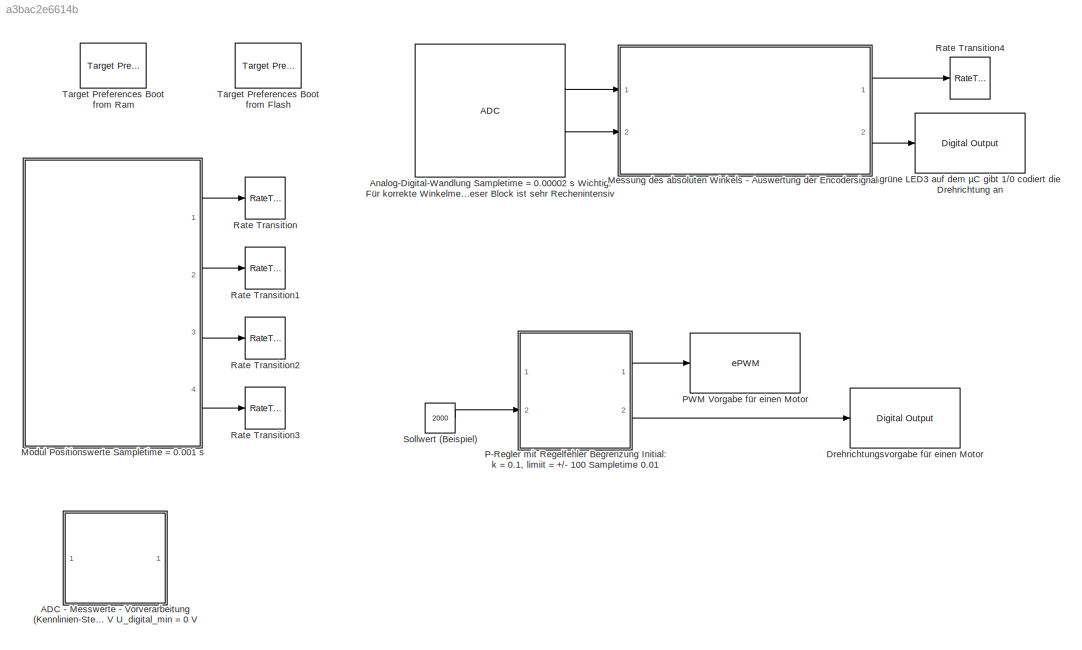
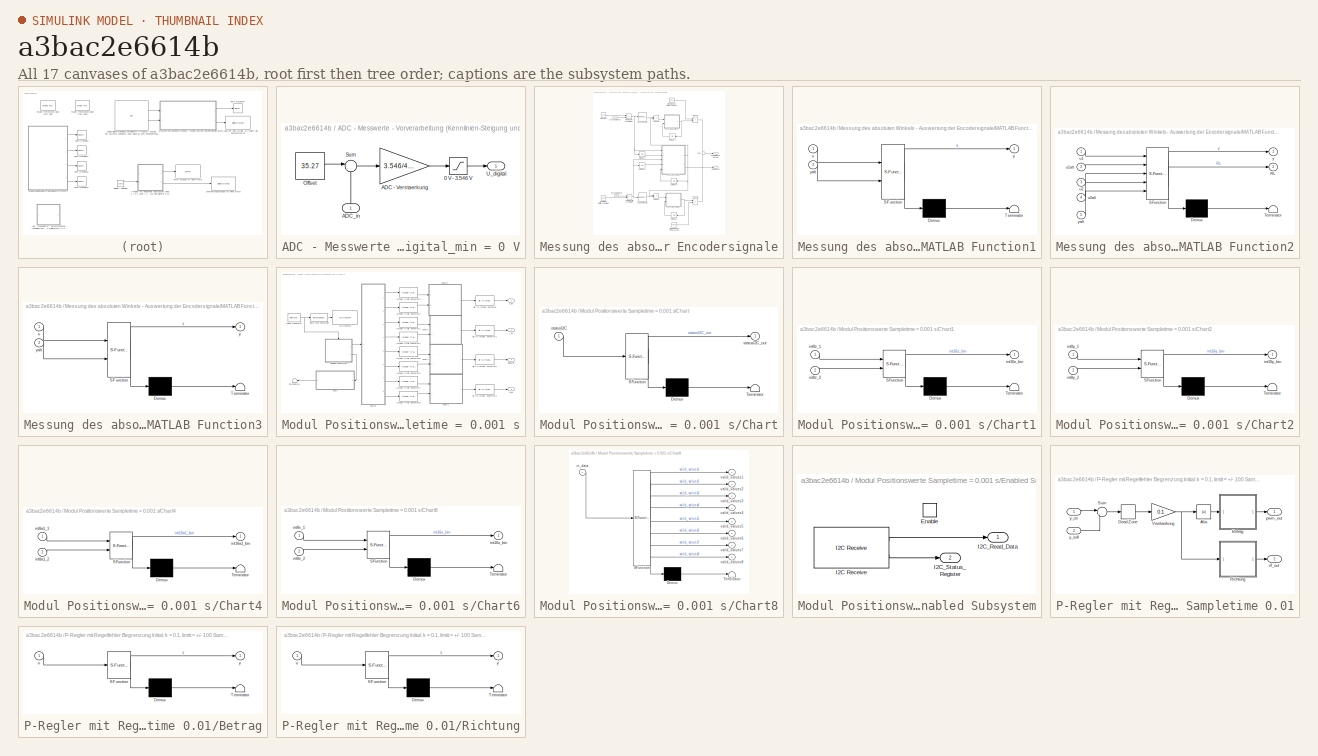
[diagram: thumbnail index - all 17 canvases of the model, root first then tree order]
MODEL slx_a3bac2e6614b
KIND model
BLOCK [SubSystem] ADC - Messwerte - Vorverarbeitung (Kennlinien-Steigung und Offset-Kompensation) U_digital = (ADC_in - Offset) * 3.546 V // 4096 mit U_digital_max = 3.546 V U_digital_min = 0 V
  FunctionWithSeparateData = off
  MaskHideContents = off
  MinAlgLoopOccurrences = off
  Opaque = off
  Ports = [1, 1]
  PropExecContextOutsideSubsystem = off
  RTWSystemCode = Auto
  RequestExecContextInheritance = off
BLOCK [Saturate] ADC - Messwerte - Vorverarbeitung (Kennlinien-Steigung und Offset-Kompensation) U_digital = (ADC_in - Offset) * 3.546 V // 4096 mit U_digital_max = 3.546 V U_digital_min = 0 V/0 V - 3.546 V
  InputPortMap = u0
  LowerLimit = 0
  Ports = [1, 1]
  UpperLimit = 3.546
BLOCK [Gain] ADC - Messwerte - Vorverarbeitung (Kennlinien-Steigung und Offset-Kompensation) U_digital = (ADC_in - Offset) * 3.546 V // 4096 mit U_digital_max = 3.546 V U_digital_min = 0 V/ADC - Verstaerkung
  Gain = 3.546/4096
  OutDataTypeStr = Inherit: Inherit via internal rule
  ParamDataTypeStr = Inherit: Inherit via internal rule
  SaturateOnIntegerOverflow = off
BLOCK [Inport] ADC - Messwerte - Vorverarbeitung (Kennlinien-Steigung und Offset-Kompensation) U_digital = (ADC_in - Offset) * 3.546 V // 4096 mit U_digital_max = 3.546 V U_digital_min = 0 V/ADC_in
  IconDisplay = Port number
BLOCK [Constant] ADC - Messwerte - Vorverarbeitung (Kennlinien-Steigung und Offset-Kompensation) U_digital = (ADC_in - Offset) * 3.546 V // 4096 mit U_digital_max = 3.546 V U_digital_min = 0 V/Offset
  Value = 35.27
BLOCK [Sum] ADC - Messwerte - Vorverarbeitung (Kennlinien-Steigung und Offset-Kompensation) U_digital = (ADC_in - Offset) * 3.546 V // 4096 mit U_digital_max = 3.546 V U_digital_min = 0 V/Sum
  IconShape = round
  InputSameDT = off
  Inputs = |-+
  OutDataTypeStr = Inherit: Inherit via internal rule
  Ports = [2, 1]
  SaturateOnIntegerOverflow = off
BLOCK [Outport] ADC - Messwerte - Vorverarbeitung (Kennlinien-Steigung und Offset-Kompensation) U_digital = (ADC_in - Offset) * 3.546 V // 4096 mit U_digital_max = 3.546 V U_digital_min = 0 V/U_digital
  IconDisplay = Port number
BLOCK [Reference] Analog-Digital-Wandlung Sampletime = 0.00002 s Wichtig! Für korrekte Winkelmessung nicht die Sampletime vergrößern Weitere Ports können hinzugefügt werden (Farbsensor, Sharp-Sensoren) Wichtig! Dieser Block ist sehr Rechenintensiv  REF=c280xlib/ADC
  Ports = [0, 2]
  SourceBlock = c280xlib/ADC
  SourceType = C280x/C2833x ADC
  Ts = 0.00002
  UserDataPersistent = on
  c28xmultiPort = on
  chdma = 1
  conv0 = ADCINA0
  conv1 = ADCINA1
  conv10 = ADCINB2
  conv11 = ADCINB3
  conv12 = ADCINB4
  conv13 = ADCINB5
  conv14 = ADCINB6
  conv15 = ADCINB7
  conv2 = ADCINA2
  conv3 = ADCINA3
  conv4 = ADCINA4
  conv5 = ADCINA5
  conv6 = ADCINA6
  conv7 = ADCINA7
  conv8 = ADCINB0
  conv9 = ADCINB1
  convA0 = ADCINA0
  convA1 = ADCINA1
  convA2 = ADCINA5
  convA3 = ADCINA3
  convA4 = ADCINA5
  convA5 = ADCINA5
  convA6 = ADCINA6
  convA7 = ADCINA7
  convAB0 = ADCINA0 and ADCINB0
  convAB1 = ADCINA1 and ADCINB1
  convAB2 = ADCINA2 and ADCINB2
  convAB3 = ADCINA3 and ADCINB3
  convAB4 = ADCINA4 and ADCINB4
  convAB5 = ADCINA5 and ADCINB5
  convAB6 = ADCINA6 and ADCINB6
  convAB7 = ADCINA7 and ADCINB7
  convB0 = ADCINB0
  convB1 = ADCINB1
  convB2 = ADCINB2
  convB3 = ADCINB3
  convB4 = ADCINB4
  convB5 = ADCINB5
  convB6 = ADCINB6
  convB7 = ADCINB7
  dType = double
  endma = off
  numConversionsDouble = 1
  numConversionsSingle = 2
  postInterrupt = off
  sourceSOC = Software
  sourceSOC1 = Software
  sourceSOC2 = ePWMxB
  useMode = Sequential
  useModule = A
  xint2_ADCSOC = 31
BLOCK [Reference] Drehrichtungsvorgabe für einen Motor  REF=c2833xlib/Digital Output
  GPIO_BIT0_Toggle = off
  GPIO_BIT1_Toggle = off
  GPIO_BIT2_Toggle = off
  GPIO_BIT3_Toggle = off
  GPIO_BIT4_Toggle = off
  GPIO_BIT5_Toggle = off
  GPIO_BIT6_Toggle = off
  GPIO_BIT7_Toggle = off
  GPIO_Bit0 = off
  GPIO_Bit1 = off
  GPIO_Bit2 = off
  GPIO_Bit3 = off
  GPIO_Bit4 = off
  GPIO_Bit5 = on
  GPIO_Bit6 = off
  GPIO_Bit7 = off
  GPIO_Number = GPIO16~GPIO23
  Ports = [1]
  SourceBlock = c2833xlib/Digital Output
  SourceType = C2833x GPIO Digital Output
  UserDataPersistent = on
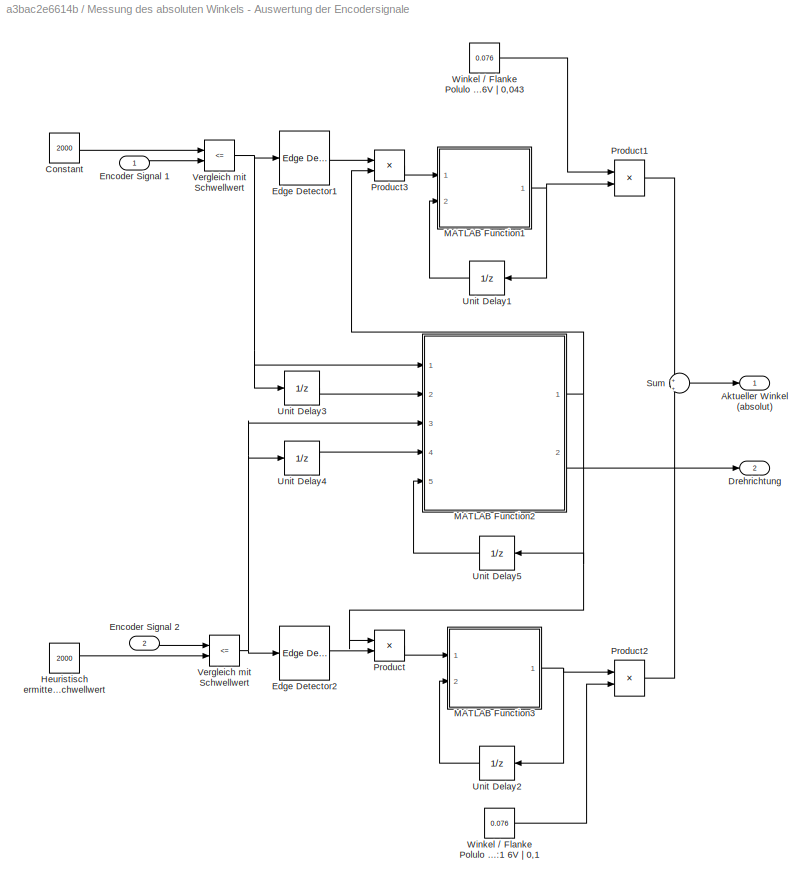
BLOCK [SubSystem] Messung des absoluten Winkels - Auswertung der Encodersignale
  FunctionWithSeparateData = off
  MaskHideContents = off
  MinAlgLoopOccurrences = off
  Opaque = off
  Ports = [2, 2]
  PropExecContextOutsideSubsystem = off
  RTWSystemCode = Auto
  RequestExecContextInheritance = off
BLOCK [Outport] Messung des absoluten Winkels - Auswertung der Encodersignale/Aktueller Winkel (absolut)
  IconDisplay = Port number
BLOCK [Constant] Messung des absoluten Winkels - Auswertung der Encodersignale/Constant
  Value = 2000
BLOCK [Outport] Messung des absoluten Winkels - Auswertung der Encodersignale/Drehrichtung
  IconDisplay = Port number
  Port = 2
BLOCK [Reference] Messung des absoluten Winkels - Auswertung der Encodersignale/Edge Detector1  REF=powerlib_extras/Control 
Blocks/Edge Detector
  Ports = [1, 1]
  SourceBlock = powerlib_extras/Control \nBlocks/Edge Detector
  SourceType = Edge Detector
  ic = 0
  model = Either
BLOCK [Reference] Messung des absoluten Winkels - Auswertung der Encodersignale/Edge Detector2  REF=powerlib_extras/Control 
Blocks/Edge Detector
  Ports = [1, 1]
  SourceBlock = powerlib_extras/Control \nBlocks/Edge Detector
  SourceType = Edge Detector
  ic = 0
  model = Either
BLOCK [Inport] Messung des absoluten Winkels - Auswertung der Encodersignale/Encoder Signal 1
  IconDisplay = Port number
BLOCK [Inport] Messung des absoluten Winkels - Auswertung der Encodersignale/Encoder Signal 2
  IconDisplay = Port number
  Port = 2
BLOCK [Constant] Messung des absoluten Winkels - Auswertung der Encodersignale/Heuristisch ermittelter Schwellwert
  Value = 2000
BLOCK [SubSystem] Messung des absoluten Winkels - Auswertung der Encodersignale/MATLAB Function1
  ErrorFcn = Stateflow.Translate.translate
  FunctionWithSeparateData = off
  MaskHideContents = off
  MinAlgLoopOccurrences = off
  Opaque = off
  PermitHierarchicalResolution = ExplicitOnly
  Ports = [2, 1]
  PropExecContextOutsideSubsystem = off
  RTWSystemCode = Auto
  RequestExecContextInheritance = off
  SFBlockType = MATLAB Function
  TreatAsAtomicUnit = on
BLOCK [Demux] Messung des absoluten Winkels - Auswertung der Encodersignale/MATLAB Function1/ Demux 
  Outputs = 1
  Ports = [1, 1]
BLOCK [S-Function] Messung des absoluten Winkels - Auswertung der Encodersignale/MATLAB Function1/ SFunction 
  EnableBusSupport = on
  FunctionName = sf_sfun
  PortCounts = [2 2]
  Ports = [2, 2]
  Tag = Stateflow S-Function SoftwareModuleMatlab2012b32bit64bit 8
BLOCK [Terminator] Messung des absoluten Winkels - Auswertung der Encodersignale/MATLAB Function1/ Terminator 
BLOCK [Inport] Messung des absoluten Winkels - Auswertung der Encodersignale/MATLAB Function1/u
  IconDisplay = Port number
BLOCK [Outport] Messung des absoluten Winkels - Auswertung der Encodersignale/MATLAB Function1/y
  IconDisplay = Port number
BLOCK [Inport] Messung des absoluten Winkels - Auswertung der Encodersignale/MATLAB Function1/yalt
  IconDisplay = Port number
  Port = 2
BLOCK [SubSystem] Messung des absoluten Winkels - Auswertung der Encodersignale/MATLAB Function2
  ErrorFcn = Stateflow.Translate.translate
  FunctionWithSeparateData = off
  MaskHideContents = off
  MinAlgLoopOccurrences = off
  Opaque = off
  PermitHierarchicalResolution = ExplicitOnly
  Ports = [5, 2]
  PropExecContextOutsideSubsystem = off
  RTWSystemCode = Auto
  RequestExecContextInheritance = off
  SFBlockType = MATLAB Function
  TreatAsAtomicUnit = on
BLOCK [Demux] Messung des absoluten Winkels - Auswertung der Encodersignale/MATLAB Function2/ Demux 
  Outputs = 1
  Ports = [1, 1]
BLOCK [S-Function] Messung des absoluten Winkels - Auswertung der Encodersignale/MATLAB Function2/ SFunction 
  EnableBusSupport = on
  FunctionName = sf_sfun
  PortCounts = [5 3]
  Ports = [5, 3]
  Tag = Stateflow S-Function SoftwareModuleMatlab2012b32bit64bit 15
BLOCK [Terminator] Messung des absoluten Winkels - Auswertung der Encodersignale/MATLAB Function2/ Terminator 
BLOCK [Outport] Messung des absoluten Winkels - Auswertung der Encodersignale/MATLAB Function2/RL
  IconDisplay = Port number
  Port = 2
BLOCK [Inport] Messung des absoluten Winkels - Auswertung der Encodersignale/MATLAB Function2/u1
  IconDisplay = Port number
BLOCK [Inport] Messung des absoluten Winkels - Auswertung der Encodersignale/MATLAB Function2/u1alt
  IconDisplay = Port number
  Port = 2
BLOCK [Inport] Messung des absoluten Winkels - Auswertung der Encodersignale/MATLAB Function2/u2
  IconDisplay = Port number
  Port = 3
BLOCK [Inport] Messung des absoluten Winkels - Auswertung der Encodersignale/MATLAB Function2/u2alt
  IconDisplay = Port number
  Port = 4
BLOCK [Outport] Messung des absoluten Winkels - Auswertung der Encodersignale/MATLAB Function2/y
  IconDisplay = Port number
BLOCK [Inport] Messung des absoluten Winkels - Auswertung der Encodersignale/MATLAB Function2/yalt
  IconDisplay = Port number
  Port = 5
BLOCK [SubSystem] Messung des absoluten Winkels - Auswertung der Encodersignale/MATLAB Function3
  ErrorFcn = Stateflow.Translate.translate
  FunctionWithSeparateData = off
  MaskHideContents = off
  MinAlgLoopOccurrences = off
  Opaque = off
  PermitHierarchicalResolution = ExplicitOnly
  Ports = [2, 1]
  PropExecContextOutsideSubsystem = off
  RTWSystemCode = Auto
  RequestExecContextInheritance = off
  SFBlockType = MATLAB Function
  TreatAsAtomicUnit = on
BLOCK [Demux] Messung des absoluten Winkels - Auswertung der Encodersignale/MATLAB Function3/ Demux 
  Outputs = 1
  Ports = [1, 1]
BLOCK [S-Function] Messung des absoluten Winkels - Auswertung der Encodersignale/MATLAB Function3/ SFunction 
  EnableBusSupport = on
  FunctionName = sf_sfun
  PortCounts = [2 2]
  Ports = [2, 2]
  Tag = Stateflow S-Function SoftwareModuleMatlab2012b32bit64bit 20
BLOCK [Terminator] Messung des absoluten Winkels - Auswertung der Encodersignale/MATLAB Function3/ Terminator 
BLOCK [Inport] Messung des absoluten Winkels - Auswertung der Encodersignale/MATLAB Function3/u
  IconDisplay = Port number
BLOCK [Outport] Messung des absoluten Winkels - Auswertung der Encodersignale/MATLAB Function3/y
  IconDisplay = Port number
BLOCK [Inport] Messung des absoluten Winkels - Auswertung der Encodersignale/MATLAB Function3/yalt
  IconDisplay = Port number
  Port = 2
BLOCK [Product] Messung des absoluten Winkels - Auswertung der Encodersignale/Product
  InputSameDT = off
  OutDataTypeStr = Inherit: Inherit via internal rule
  Ports = [2, 1]
  SaturateOnIntegerOverflow = off
BLOCK [Product] Messung des absoluten Winkels - Auswertung der Encodersignale/Product1
  InputSameDT = off
  OutDataTypeStr = Inherit: Inherit via internal rule
  Ports = [2, 1]
  SaturateOnIntegerOverflow = off
BLOCK [Product] Messung des absoluten Winkels - Auswertung der Encodersignale/Product2
  InputSameDT = off
  OutDataTypeStr = Inherit: Inherit via internal rule
  Ports = [2, 1]
  SaturateOnIntegerOverflow = off
BLOCK [Product] Messung des absoluten Winkels - Auswertung der Encodersignale/Product3
  InputSameDT = off
  OutDataTypeStr = Inherit: Inherit via internal rule
  Ports = [2, 1]
  SaturateOnIntegerOverflow = off
BLOCK [Sum] Messung des absoluten Winkels - Auswertung der Encodersignale/Sum
  IconShape = round
  InputSameDT = off
  Inputs = +|+
  OutDataTypeStr = Inherit: Inherit via internal rule
  Ports = [2, 1]
  SaturateOnIntegerOverflow = off
BLOCK [UnitDelay] Messung des absoluten Winkels - Auswertung der Encodersignale/Unit Delay1
  InputProcessing = Elements as channels (sample based)
  SampleTime = -1
BLOCK [UnitDelay] Messung des absoluten Winkels - Auswertung der Encodersignale/Unit Delay2
  InputProcessing = Elements as channels (sample based)
  SampleTime = -1
BLOCK [UnitDelay] Messung des absoluten Winkels - Auswertung der Encodersignale/Unit Delay3
  InputProcessing = Elements as channels (sample based)
  SampleTime = -1
BLOCK [UnitDelay] Messung des absoluten Winkels - Auswertung der Encodersignale/Unit Delay4
  InputProcessing = Elements as channels (sample based)
  SampleTime = -1
BLOCK [UnitDelay] Messung des absoluten Winkels - Auswertung der Encodersignale/Unit Delay5
  InputProcessing = Elements as channels (sample based)
  SampleTime = -1
BLOCK [RelationalOperator] Messung des absoluten Winkels - Auswertung der Encodersignale/Vergleich mit Schwellwert
  InputSameDT = off
  Operator = <=
  OutDataTypeStr = boolean
  Ports = [2, 1]
BLOCK [Constant] Messung des absoluten Winkels - Auswertung der Encodersignale/Winkel // Flanke Polulo 34:1 6V | 0,22 Polulo 74:1 6V | 0,1 Polulo 98:1 6V | 0,076 Polulo 171:1 6V | 0,043
  Value = 0.076
BLOCK [Constant] Messung des absoluten Winkels - Auswertung der Encodersignale/Winkel // Flanke Polulo 34:1 6V | 0,22 Polulo 74:1 6V | 0,1 Polulo 98:1 6V | 0,076 Polulo 171:1 6V | 0,1
  Value = 0.076
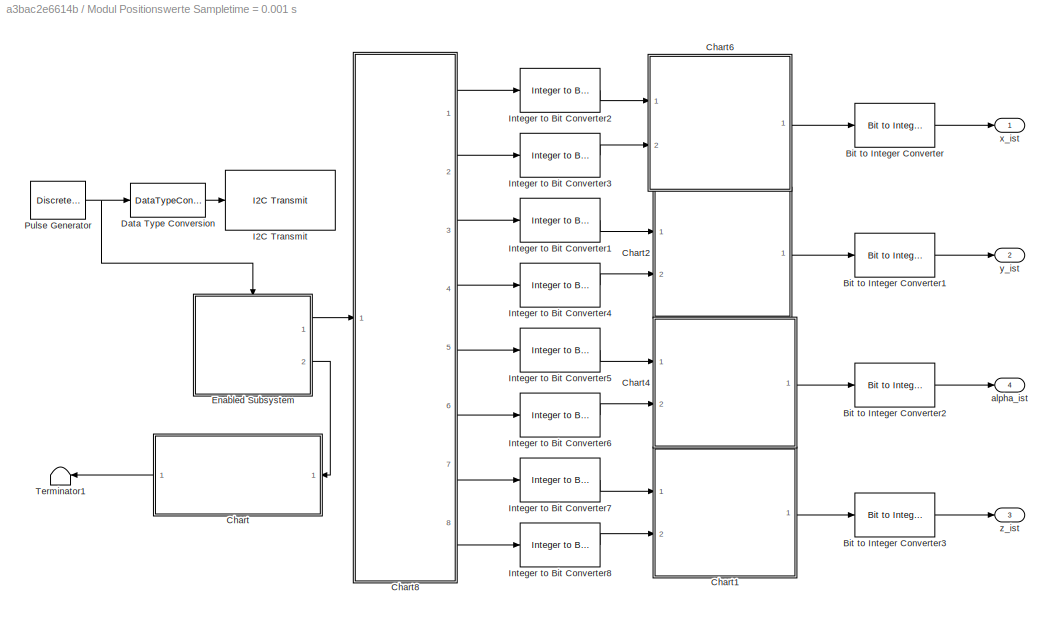
BLOCK [SubSystem] Modul Positionswerte Sampletime = 0.001 s
  FunctionWithSeparateData = off
  MaskHideContents = off
  MinAlgLoopOccurrences = off
  Opaque = off
  Ports = [0, 4]
  PropExecContextOutsideSubsystem = off
  RTWSystemCode = Auto
  RequestExecContextInheritance = off
BLOCK [Reference] Modul Positionswerte Sampletime = 0.001 s/Bit to Integer Converter  REF=commutil2/Bit to Integer
Converter
  Ports = [1, 1]
  SourceBlock = commutil2/Bit to Integer\nConverter
  SourceType = Bit to Integer Converter
  bitOrder = MSB first
  nbits = 16
  outDtype = Inherit via internal rule
  outDtypeSigned = Inherit via internal rule
  signedOutputValues = Signed
BLOCK [Reference] Modul Positionswerte Sampletime = 0.001 s/Bit to Integer Converter1  REF=commutil2/Bit to Integer
Converter
  Ports = [1, 1]
  SourceBlock = commutil2/Bit to Integer\nConverter
  SourceType = Bit to Integer Converter
  bitOrder = MSB first
  nbits = 16
  outDtype = Inherit via internal rule
  outDtypeSigned = Inherit via internal rule
  signedOutputValues = Signed
BLOCK [Reference] Modul Positionswerte Sampletime = 0.001 s/Bit to Integer Converter2  REF=commutil2/Bit to Integer
Converter
  Ports = [1, 1]
  SourceBlock = commutil2/Bit to Integer\nConverter
  SourceType = Bit to Integer Converter
  bitOrder = MSB first
  nbits = 16
  outDtype = Inherit via internal rule
  outDtypeSigned = Inherit via internal rule
  signedOutputValues = Signed
BLOCK [Reference] Modul Positionswerte Sampletime = 0.001 s/Bit to Integer Converter3  REF=commutil2/Bit to Integer
Converter
  Ports = [1, 1]
  SourceBlock = commutil2/Bit to Integer\nConverter
  SourceType = Bit to Integer Converter
  bitOrder = MSB first
  nbits = 16
  outDtype = Inherit via internal rule
  outDtypeSigned = Inherit via internal rule
  signedOutputValues = Signed
BLOCK [SubSystem] Modul Positionswerte Sampletime = 0.001 s/Chart
  ErrorFcn = Stateflow.Translate.translate
  FunctionWithSeparateData = off
  MaskHideContents = off
  MinAlgLoopOccurrences = off
  Opaque = off
  PermitHierarchicalResolution = ExplicitOnly
  Ports = [1, 1]
  PropExecContextOutsideSubsystem = off
  RTWSystemCode = Auto
  RequestExecContextInheritance = off
  SFBlockType = Chart
  TreatAsAtomicUnit = on
BLOCK [Demux] Modul Positionswerte Sampletime = 0.001 s/Chart/ Demux 
  Outputs = 1
  Ports = [1, 1]
BLOCK [S-Function] Modul Positionswerte Sampletime = 0.001 s/Chart/ SFunction 
  EnableBusSupport = on
  FunctionName = sf_sfun
  PortCounts = [1 2]
  Ports = [1, 2]
  Tag = Stateflow S-Function SoftwareModuleMatlab2012b32bit64bit 21
BLOCK [Terminator] Modul Positionswerte Sampletime = 0.001 s/Chart/ Terminator 
BLOCK [Inport] Modul Positionswerte Sampletime = 0.001 s/Chart/statusI2C
  IconDisplay = Port number
BLOCK [Outport] Modul Positionswerte Sampletime = 0.001 s/Chart/statusI2C_out
  IconDisplay = Port number
BLOCK [SubSystem] Modul Positionswerte Sampletime = 0.001 s/Chart1
  ErrorFcn = Stateflow.Translate.translate
  FunctionWithSeparateData = off
  MaskHideContents = off
  MinAlgLoopOccurrences = off
  Opaque = off
  PermitHierarchicalResolution = ExplicitOnly
  Ports = [2, 1]
  PropExecContextOutsideSubsystem = off
  RTWSystemCode = Auto
  RequestExecContextInheritance = off
  SFBlockType = Chart
  TreatAsAtomicUnit = on
BLOCK [Demux] Modul Positionswerte Sampletime = 0.001 s/Chart1/ Demux 
  Outputs = 1
  Ports = [1, 1]
BLOCK [S-Function] Modul Positionswerte Sampletime = 0.001 s/Chart1/ SFunction 
  EnableBusSupport = off
  FunctionName = sf_sfun
  PortCounts = [2 2]
  Ports = [2, 2]
  Tag = Stateflow S-Function SoftwareModuleMatlab2012b32bit64bit 1
BLOCK [Terminator] Modul Positionswerte Sampletime = 0.001 s/Chart1/ Terminator 
BLOCK [Outport] Modul Positionswerte Sampletime = 0.001 s/Chart1/int16z_bin
  IconDisplay = Port number
BLOCK [Inport] Modul Positionswerte Sampletime = 0.001 s/Chart1/int8z_1
  IconDisplay = Port number
BLOCK [Inport] Modul Positionswerte Sampletime = 0.001 s/Chart1/int8z_2
  IconDisplay = Port number
  Port = 2
BLOCK [SubSystem] Modul Positionswerte Sampletime = 0.001 s/Chart2
  ErrorFcn = Stateflow.Translate.translate
  FunctionWithSeparateData = off
  MaskHideContents = off
  MinAlgLoopOccurrences = off
  Opaque = off
  PermitHierarchicalResolution = ExplicitOnly
  Ports = [2, 1]
  PropExecContextOutsideSubsystem = off
  RTWSystemCode = Auto
  RequestExecContextInheritance = off
  SFBlockType = Chart
  TreatAsAtomicUnit = on
BLOCK [Demux] Modul Positionswerte Sampletime = 0.001 s/Chart2/ Demux 
  Outputs = 1
  Ports = [1, 1]
BLOCK [S-Function] Modul Positionswerte Sampletime = 0.001 s/Chart2/ SFunction 
  EnableBusSupport = off
  FunctionName = sf_sfun
  PortCounts = [2 2]
  Ports = [2, 2]
  Tag = Stateflow S-Function SoftwareModuleMatlab2012b32bit64bit 3
BLOCK [Terminator] Modul Positionswerte Sampletime = 0.001 s/Chart2/ Terminator 
BLOCK [Outport] Modul Positionswerte Sampletime = 0.001 s/Chart2/int16y_bin
  IconDisplay = Port number
BLOCK [Inport] Modul Positionswerte Sampletime = 0.001 s/Chart2/int8y_1
  IconDisplay = Port number
BLOCK [Inport] Modul Positionswerte Sampletime = 0.001 s/Chart2/int8y_2
  IconDisplay = Port number
  Port = 2
BLOCK [SubSystem] Modul Positionswerte Sampletime = 0.001 s/Chart4
  ErrorFcn = Stateflow.Translate.translate
  FunctionWithSeparateData = off
  MaskHideContents = off
  MinAlgLoopOccurrences = off
  Opaque = off
  PermitHierarchicalResolution = ExplicitOnly
  Ports = [2, 1]
  PropExecContextOutsideSubsystem = off
  RTWSystemCode = Auto
  RequestExecContextInheritance = off
  SFBlockType = Chart
  TreatAsAtomicUnit = on
BLOCK [Demux] Modul Positionswerte Sampletime = 0.001 s/Chart4/ Demux 
  Outputs = 1
  Ports = [1, 1]
BLOCK [S-Function] Modul Positionswerte Sampletime = 0.001 s/Chart4/ SFunction 
  EnableBusSupport = off
  FunctionName = sf_sfun
  PortCounts = [2 2]
  Ports = [2, 2]
  Tag = Stateflow S-Function SoftwareModuleMatlab2012b32bit64bit 5
BLOCK [Terminator] Modul Positionswerte Sampletime = 0.001 s/Chart4/ Terminator 
BLOCK [Outport] Modul Positionswerte Sampletime = 0.001 s/Chart4/int16a1_bin
  IconDisplay = Port number
BLOCK [Inport] Modul Positionswerte Sampletime = 0.001 s/Chart4/int8a1_1
  IconDisplay = Port number
BLOCK [Inport] Modul Positionswerte Sampletime = 0.001 s/Chart4/int8a1_2
  IconDisplay = Port number
  Port = 2
BLOCK [SubSystem] Modul Positionswerte Sampletime = 0.001 s/Chart6
  ErrorFcn = Stateflow.Translate.translate
  FunctionWithSeparateData = off
  MaskHideContents = off
  MinAlgLoopOccurrences = off
  Opaque = off
  PermitHierarchicalResolution = ExplicitOnly
  Ports = [2, 1]
  PropExecContextOutsideSubsystem = off
  RTWSystemCode = Auto
  RequestExecContextInheritance = off
  SFBlockType = Chart
  TreatAsAtomicUnit = on
BLOCK [Demux] Modul Positionswerte Sampletime = 0.001 s/Chart6/ Demux 
  Outputs = 1
  Ports = [1, 1]
BLOCK [S-Function] Modul Positionswerte Sampletime = 0.001 s/Chart6/ SFunction 
  EnableBusSupport = off
  FunctionName = sf_sfun
  PortCounts = [2 2]
  Ports = [2, 2]
  Tag = Stateflow S-Function SoftwareModuleMatlab2012b32bit64bit 7
BLOCK [Terminator] Modul Positionswerte Sampletime = 0.001 s/Chart6/ Terminator 
BLOCK [Outport] Modul Positionswerte Sampletime = 0.001 s/Chart6/int16x_bin
  IconDisplay = Port number
BLOCK [Inport] Modul Positionswerte Sampletime = 0.001 s/Chart6/int8x_1
  IconDisplay = Port number
BLOCK [Inport] Modul Positionswerte Sampletime = 0.001 s/Chart6/int8x_2
  IconDisplay = Port number
  Port = 2
BLOCK [SubSystem] Modul Positionswerte Sampletime = 0.001 s/Chart8
  ErrorFcn = Stateflow.Translate.translate
  FunctionWithSeparateData = off
  MaskHideContents = off
  MinAlgLoopOccurrences = off
  Opaque = off
  PermitHierarchicalResolution = ExplicitOnly
  Ports = [1, 8]
  PropExecContextOutsideSubsystem = off
  RTWSystemCode = Auto
  RequestExecContextInheritance = off
  SFBlockType = Chart
  TreatAsAtomicUnit = on
BLOCK [Demux] Modul Positionswerte Sampletime = 0.001 s/Chart8/ Demux 
  Outputs = 1
  Ports = [1, 1]
BLOCK [S-Function] Modul Positionswerte Sampletime = 0.001 s/Chart8/ SFunction 
  EnableBusSupport = off
  FunctionName = sf_sfun
  PortCounts = [1 9]
  Ports = [1, 9]
  Tag = Stateflow S-Function SoftwareModuleMatlab2012b32bit64bit 9
BLOCK [Terminator] Modul Positionswerte Sampletime = 0.001 s/Chart8/ Terminator 
BLOCK [Inport] Modul Positionswerte Sampletime = 0.001 s/Chart8/in_data
  IconDisplay = Port number
BLOCK [Outport] Modul Positionswerte Sampletime = 0.001 s/Chart8/valid_values1
  IconDisplay = Port number
BLOCK [Outport] Modul Positionswerte Sampletime = 0.001 s/Chart8/valid_values2
  IconDisplay = Port number
  Port = 2
BLOCK [Outport] Modul Positionswerte Sampletime = 0.001 s/Chart8/valid_values3
  IconDisplay = Port number
  Port = 3
BLOCK [Outport] Modul Positionswerte Sampletime = 0.001 s/Chart8/valid_values4
  IconDisplay = Port number
  Port = 4
BLOCK [Outport] Modul Positionswerte Sampletime = 0.001 s/Chart8/valid_values5
  IconDisplay = Port number
  Port = 5
BLOCK [Outport] Modul Positionswerte Sampletime = 0.001 s/Chart8/valid_values6
  IconDisplay = Port number
  Port = 6
BLOCK [Outport] Modul Positionswerte Sampletime = 0.001 s/Chart8/valid_values7
  IconDisplay = Port number
  Port = 7
BLOCK [Outport] Modul Positionswerte Sampletime = 0.001 s/Chart8/valid_values8
  IconDisplay = Port number
  Port = 8
BLOCK [DataTypeConversion] Modul Positionswerte Sampletime = 0.001 s/Data Type Conversion
  OutDataTypeStr = uint8
  RndMeth = Floor
  SaturateOnIntegerOverflow = off
BLOCK [SubSystem] Modul Positionswerte Sampletime = 0.001 s/Enabled Subsystem
  FunctionWithSeparateData = off
  MaskHideContents = off
  MinAlgLoopOccurrences = off
  Opaque = off
  Ports = [0, 2, 1]
  PropExecContextOutsideSubsystem = off
  RTWSystemCode = Auto
  RequestExecContextInheritance = off
  TreatAsAtomicUnit = on
BLOCK [EnablePort] Modul Positionswerte Sampletime = 0.001 s/Enabled Subsystem/Enable
  Ports = []
  StatesWhenEnabling = reset
BLOCK [Reference] Modul Positionswerte Sampletime = 0.001 s/Enabled Subsystem/I2C Receive  REF=c280xlib/I2C Receive
  NACK = on
  Ports = [0, 2]
  SAR = 80
  STP = off
  STR = on
  SourceBlock = c280xlib/I2C Receive
  SourceType = C28x I2C Receive
  addrFormat = 7-Bit addressing
  bitCount = 8
  dataLength = 10
  dataType = uint8
  initValue = 0
  saSource = Specify via dialog
  sampleTime = 0.001
BLOCK [Outport] Modul Positionswerte Sampletime = 0.001 s/Enabled Subsystem/I2C_Read_Data
  IconDisplay = Port number
BLOCK [Outport] Modul Positionswerte Sampletime = 0.001 s/Enabled Subsystem/I2C_Status_Register
  IconDisplay = Port number
  Port = 2
BLOCK [Reference] Modul Positionswerte Sampletime = 0.001 s/I2C Transmit  REF=c280xlib/I2C Transmit
  Ports = [1]
  RM = off
  SAR = 80
  STP = off
  STR = off
  SourceBlock = c280xlib/I2C Transmit
  SourceType = C28x I2C Transmit
  addrFormat = 7-Bit addressing
  bitCount = 8
  saSource = Specify via dialog
BLOCK [Reference] Modul Positionswerte Sampletime = 0.001 s/Integer to Bit Converter1  REF=commutil2/Integer to Bit
Converter
  Ports = [1, 1]
  SourceBlock = commutil2/Integer to Bit\nConverter
  SourceType = Integer to Bit Converter
  bitOrder = MSB first
  nbits = 8
  outDtype = uint8
  signedInputValues = Unsigned
BLOCK [Reference] Modul Positionswerte Sampletime = 0.001 s/Integer to Bit Converter2  REF=commutil2/Integer to Bit
Converter
  Ports = [1, 1]
  SourceBlock = commutil2/Integer to Bit\nConverter
  SourceType = Integer to Bit Converter
  bitOrder = MSB first
  nbits = 8
  outDtype = uint8
  signedInputValues = Unsigned
BLOCK [Reference] Modul Positionswerte Sampletime = 0.001 s/Integer to Bit Converter3  REF=commutil2/Integer to Bit
Converter
  Ports = [1, 1]
  SourceBlock = commutil2/Integer to Bit\nConverter
  SourceType = Integer to Bit Converter
  bitOrder = MSB first
  nbits = 8
  outDtype = uint8
  signedInputValues = Unsigned
BLOCK [Reference] Modul Positionswerte Sampletime = 0.001 s/Integer to Bit Converter4  REF=commutil2/Integer to Bit
Converter
  Ports = [1, 1]
  SourceBlock = commutil2/Integer to Bit\nConverter
  SourceType = Integer to Bit Converter
  bitOrder = MSB first
  nbits = 8
  outDtype = uint8
  signedInputValues = Unsigned
BLOCK [Reference] Modul Positionswerte Sampletime = 0.001 s/Integer to Bit Converter5  REF=commutil2/Integer to Bit
Converter
  Ports = [1, 1]
  SourceBlock = commutil2/Integer to Bit\nConverter
  SourceType = Integer to Bit Converter
  bitOrder = MSB first
  nbits = 8
  outDtype = uint8
  signedInputValues = Unsigned
BLOCK [Reference] Modul Positionswerte Sampletime = 0.001 s/Integer to Bit Converter6  REF=commutil2/Integer to Bit
Converter
  Ports = [1, 1]
  SourceBlock = commutil2/Integer to Bit\nConverter
  SourceType = Integer to Bit Converter
  bitOrder = MSB first
  nbits = 8
  outDtype = uint8
  signedInputValues = Unsigned
BLOCK [Reference] Modul Positionswerte Sampletime = 0.001 s/Integer to Bit Converter7  REF=commutil2/Integer to Bit
Converter
  Ports = [1, 1]
  SourceBlock = commutil2/Integer to Bit\nConverter
  SourceType = Integer to Bit Converter
  bitOrder = MSB first
  nbits = 8
  outDtype = uint8
  signedInputValues = Unsigned
BLOCK [Reference] Modul Positionswerte Sampletime = 0.001 s/Integer to Bit Converter8  REF=commutil2/Integer to Bit
Converter
  Ports = [1, 1]
  SourceBlock = commutil2/Integer to Bit\nConverter
  SourceType = Integer to Bit Converter
  bitOrder = MSB first
  nbits = 8
  outDtype = uint8
  signedInputValues = Unsigned
BLOCK [DiscretePulseGenerator] Modul Positionswerte Sampletime = 0.001 s/Pulse Generator
  Period = 250
  Ports = [0, 1]
  PulseWidth = 249
  SampleTime = 0.001
BLOCK [Terminator] Modul Positionswerte Sampletime = 0.001 s/Terminator1
BLOCK [Outport] Modul Positionswerte Sampletime = 0.001 s/alpha_ist
  IconDisplay = Port number
  Port = 4
BLOCK [Outport] Modul Positionswerte Sampletime = 0.001 s/x_ist
  IconDisplay = Port number
BLOCK [Outport] Modul Positionswerte Sampletime = 0.001 s/y_ist
  IconDisplay = Port number
  Port = 2
BLOCK [Outport] Modul Positionswerte Sampletime = 0.001 s/z_ist
  IconDisplay = Port number
  Port = 3
BLOCK [SubSystem] P-Regler mit Regelfehler Begrenzung Initial: k = 0.1, limiit = +//- 100 Sampletime 0.01
  FunctionWithSeparateData = off
  MaskHideContents = off
  MinAlgLoopOccurrences = off
  Opaque = off
  Ports = [2, 2]
  PropExecContextOutsideSubsystem = off
  RTWSystemCode = Auto
  RequestExecContextInheritance = off
BLOCK [Abs] P-Regler mit Regelfehler Begrenzung Initial: k = 0.1, limiit = +//- 100 Sampletime 0.01/Abs
  SampleTime = 0.01
  SaturateOnIntegerOverflow = off
BLOCK [SubSystem] P-Regler mit Regelfehler Begrenzung Initial: k = 0.1, limiit = +//- 100 Sampletime 0.01/Betrag
  ErrorFcn = Stateflow.Translate.translate
  FunctionWithSeparateData = off
  MaskHideContents = off
  MinAlgLoopOccurrences = off
  Opaque = off
  PermitHierarchicalResolution = ExplicitOnly
  Ports = [1, 1]
  PropExecContextOutsideSubsystem = off
  RTWSystemCode = Auto
  RequestExecContextInheritance = off
  SFBlockType = MATLAB Function
  SystemSampleTime = 0.01
  TreatAsAtomicUnit = on
BLOCK [Demux] P-Regler mit Regelfehler Begrenzung Initial: k = 0.1, limiit = +//- 100 Sampletime 0.01/Betrag/ Demux 
  Outputs = 1
  Ports = [1, 1]
BLOCK [S-Function] P-Regler mit Regelfehler Begrenzung Initial: k = 0.1, limiit = +//- 100 Sampletime 0.01/Betrag/ SFunction 
  EnableBusSupport = off
  FunctionName = sf_sfun
  PortCounts = [1 2]
  Ports = [1, 2]
  Tag = Stateflow S-Function SoftwareModuleMatlab2012b32bit64bit 4
BLOCK [Terminator] P-Regler mit Regelfehler Begrenzung Initial: k = 0.1, limiit = +//- 100 Sampletime 0.01/Betrag/ Terminator 
BLOCK [Inport] P-Regler mit Regelfehler Begrenzung Initial: k = 0.1, limiit = +//- 100 Sampletime 0.01/Betrag/u
  IconDisplay = Port number
BLOCK [Outport] P-Regler mit Regelfehler Begrenzung Initial: k = 0.1, limiit = +//- 100 Sampletime 0.01/Betrag/y
  IconDisplay = Port number
BLOCK [DeadZone] P-Regler mit Regelfehler Begrenzung Initial: k = 0.1, limiit = +//- 100 Sampletime 0.01/Dead Zone
  LowerValue = -100
  SampleTime = 0.01
  UpperValue = 100
BLOCK [SubSystem] P-Regler mit Regelfehler Begrenzung Initial: k = 0.1, limiit = +//- 100 Sampletime 0.01/Richtung
  ErrorFcn = Stateflow.Translate.translate
  FunctionWithSeparateData = off
  MaskHideContents = off
  MinAlgLoopOccurrences = off
  Opaque = off
  PermitHierarchicalResolution = ExplicitOnly
  Ports = [1, 1]
  PropExecContextOutsideSubsystem = off
  RTWSystemCode = Auto
  RequestExecContextInheritance = off
  SFBlockType = MATLAB Function
  SystemSampleTime = 0.01
  TreatAsAtomicUnit = on
BLOCK [Demux] P-Regler mit Regelfehler Begrenzung Initial: k = 0.1, limiit = +//- 100 Sampletime 0.01/Richtung/ Demux 
  Outputs = 1
  Ports = [1, 1]
BLOCK [S-Function] P-Regler mit Regelfehler Begrenzung Initial: k = 0.1, limiit = +//- 100 Sampletime 0.01/Richtung/ SFunction 
  EnableBusSupport = off
  FunctionName = sf_sfun
  PortCounts = [1 2]
  Ports = [1, 2]
  Tag = Stateflow S-Function SoftwareModuleMatlab2012b32bit64bit 6
BLOCK [Terminator] P-Regler mit Regelfehler Begrenzung Initial: k = 0.1, limiit = +//- 100 Sampletime 0.01/Richtung/ Terminator 
BLOCK [Inport] P-Regler mit Regelfehler Begrenzung Initial: k = 0.1, limiit = +//- 100 Sampletime 0.01/Richtung/u
  IconDisplay = Port number
BLOCK [Outport] P-Regler mit Regelfehler Begrenzung Initial: k = 0.1, limiit = +//- 100 Sampletime 0.01/Richtung/y
  IconDisplay = Port number
BLOCK [Sum] P-Regler mit Regelfehler Begrenzung Initial: k = 0.1, limiit = +//- 100 Sampletime 0.01/Sum
  IconShape = round
  InputSameDT = off
  Inputs = |-+
  OutDataTypeStr = Inherit: Inherit via internal rule
  Ports = [2, 1]
  SampleTime = 0.01
  SaturateOnIntegerOverflow = off
BLOCK [Gain] P-Regler mit Regelfehler Begrenzung Initial: k = 0.1, limiit = +//- 100 Sampletime 0.01/Verstaerkung
  Gain = 0.1
  OutDataTypeStr = Inherit: Inherit via internal rule
  ParamDataTypeStr = Inherit: Inherit via internal rule
  SampleTime = 0.01
  SaturateOnIntegerOverflow = off
BLOCK [Outport] P-Regler mit Regelfehler Begrenzung Initial: k = 0.1, limiit = +//- 100 Sampletime 0.01/pwm_out
  IconDisplay = Port number
BLOCK [Outport] P-Regler mit Regelfehler Begrenzung Initial: k = 0.1, limiit = +//- 100 Sampletime 0.01/r//l_out
  IconDisplay = Port number
  Port = 2
BLOCK [Inport] P-Regler mit Regelfehler Begrenzung Initial: k = 0.1, limiit = +//- 100 Sampletime 0.01/y_ist
  IconDisplay = Port number
BLOCK [Inport] P-Regler mit Regelfehler Begrenzung Initial: k = 0.1, limiit = +//- 100 Sampletime 0.01/y_soll
  IconDisplay = Port number
  Port = 2
BLOCK [Reference] PWM Vorgabe für einen Motor   REF=c280xlib/ePWM
  CMPASource = Specify via dialog
  CMPAUnits = Clock cycles
  CMPAValue_clk = 32000
  CMPAValue_per = 50
  CMPBSource = Input port
  CMPBUnits = Percentages
  CMPBValue_clk = 32000
  CMPBValue_per = 0
  DBSource_ePWMxA = ePWMxA
  DBSource_ePWMxB = ePWMxA
  DBedgeDelay = Positive
  DBperiodSource = Specify via dialog
  DBpolarity = AH
  FEDperiod = 0
  HRPWM_CTLMode = Phase control mode
  HRPWM_EDGMode = Both edge
  HRPWM_LoadMode = CTR=ZERO
  HSclockPrescale = 1
  Ports = [1]
  REDperiod = 0
  SourceBlock = c280xlib/ePWM
  SourceType = C280x/C2833x ePWM
  adcrequestEventA = First event
  adcrequestEventB = First event
  adcstartEventA = CTR=Zero
  adcstartEventB = CTR=Zero
  adcstartModuleA = off
  adcstartModuleB = off
  checkMode = off
  chopperDuty = 12.5%
  chopperEnable = off
  chopperFirstwidth = 1
  chopperFrequency = 1
  clockPrescale = 1
  countingMode = Up
  ePWMxACSFenable = off
  ePWMxACSFvalue = Forcing Disable
  ePWMxALoadMode = Load on CTR=Zero
  ePWMxASFreload = Zero
  ePWMxAStatus = off
  ePWMxAValue = 0
  ePWMxAactionLogic1 = Do nothing
  ePWMxAactionLogic2 = Clear
  ePWMxAactionLogic3 = Set
  ePWMxAactionLogic4 = Do nothing
  ePWMxAactionLogic5 = Do nothing
  ePWMxAactionLogic6 = Do nothing
  ePWMxAforced = No action
  ePWMxBCSFenable = off
  ePWMxBCSFvalue = Forcing Disable
  ePWMxBLoadMode = Load on CTR=Zero
  ePWMxBSFreload = Zero
  ePWMxBStatus = on
  ePWMxBValue = 0
  ePWMxBactionLogic1 = Do nothing
  ePWMxBactionLogic2 = Set
  ePWMxBactionLogic3 = Do nothing
  ePWMxBactionLogic4 = Do nothing
  ePWMxBactionLogic5 = Clear
  ePWMxBactionLogic6 = Do nothing
  ePWMxBforced = No action
  enHRPWM = off
  enSFO = on
  enTzCbcIntr = off
  enTzOstIntr = off
  enableDBePWMxA = off
  enableDBePWMxB = off
  intEn = off
  intPrd = First event
  intSel = CTR=Zero
  periodUnits = Clock cycles
  phaseActive = 0
  phaseActiveEnable = Disable
  phaseDirection = Count down after sync
  synchronizationEnable = off
  synchronizationOption = Disable
  timerPeriod = -1
  timerPeriod_clk = 64000
  timerPeriod_sec = 0.0001
  timerSource = Specify via dialog
  tripZoneoption = OSHT
  tripZonesource = Specify via dialog
  tzselCBC1 = off
  tzselCBC2 = off
  tzselCBC3 = off
  tzselCBC4 = off
  tzselCBC5 = off
  tzselCBC6 = off
  tzselOSHT1 = off
  tzselOSHT2 = off
  tzselOSHT3 = off
  tzselOSHT4 = off
  tzselOSHT5 = off
  tzselOSHT6 = off
  useModule = ePWM2
BLOCK [RateTransition] Rate Transition
  OutPortSampleTime = 0.01
BLOCK [RateTransition] Rate Transition1
  OutPortSampleTime = 0.01
BLOCK [RateTransition] Rate Transition2
  OutPortSampleTime = 0.01
BLOCK [RateTransition] Rate Transition3
  OutPortSampleTime = 0.01
BLOCK [RateTransition] Rate Transition4
  OutPortSampleTime = 0.01
BLOCK [Constant] Sollwert (Beispiel)
  Value = 2000
BLOCK [Reference] Target Preferences Boot from Flash  REF=idelinklib_tgtpref/Target Preferences
Template
  Ports = []
  SourceBlock = idelinklib_tgtpref/Target Preferences\nTemplate
  SourceType = Target Preferences
  Tag = ccslinktgtpref_ccsv4
  UserDataPersistent = on
  library = off
BLOCK [Reference] Target Preferences Boot from Ram  REF=idelinklib_tgtpref/Target Preferences
Template
  Commented = on
  Ports = []
  SourceBlock = idelinklib_tgtpref/Target Preferences\nTemplate
  SourceType = Target Preferences
  Tag = ccslinktgtpref_ccsv4
  UserDataPersistent = on
  library = off
BLOCK [Reference] grüne LED3 auf dem µC gibt 1//0 codiert die Drehrichtung an  REF=c2833xlib/Digital Output
  GPIO_BIT0_Toggle = off
  GPIO_BIT1_Toggle = off
  GPIO_BIT2_Toggle = off
  GPIO_BIT3_Toggle = off
  GPIO_BIT4_Toggle = off
  GPIO_BIT5_Toggle = off
  GPIO_BIT6_Toggle = off
  GPIO_BIT7_Toggle = off
  GPIO_Bit0 = off
  GPIO_Bit1 = off
  GPIO_Bit2 = on
  GPIO_Bit3 = off
  GPIO_Bit4 = off
  GPIO_Bit5 = off
  GPIO_Bit6 = off
  GPIO_Bit7 = off
  GPIO_Number = GPIO32~GPIO39
  Ports = [1]
  SourceBlock = c2833xlib/Digital Output
  SourceType = C2833x GPIO Digital Output
  UserDataPersistent = on
LINE ADC - Messwerte - Vorverarbeitung (Kennlinien-Steigung und Offset-Kompensation) U_digital = (ADC_in - Offset) * 3.546 V // 4096 mit U_digital_max = 3.546 V U_digital_min = 0 V/0 V - 3.546 V:1 -> ADC - Messwerte - Vorverarbeitung (Kennlinien-Steigung und Offset-Kompensation) U_digital = (ADC_in - Offset) * 3.546 V // 4096 mit U_digital_max = 3.546 V U_digital_min = 0 V/U_digital:1
LINE ADC - Messwerte - Vorverarbeitung (Kennlinien-Steigung und Offset-Kompensation) U_digital = (ADC_in - Offset) * 3.546 V // 4096 mit U_digital_max = 3.546 V U_digital_min = 0 V/ADC - Verstaerkung:1 -> ADC - Messwerte - Vorverarbeitung (Kennlinien-Steigung und Offset-Kompensation) U_digital = (ADC_in - Offset) * 3.546 V // 4096 mit U_digital_max = 3.546 V U_digital_min = 0 V/0 V - 3.546 V:1
LINE ADC - Messwerte - Vorverarbeitung (Kennlinien-Steigung und Offset-Kompensation) U_digital = (ADC_in - Offset) * 3.546 V // 4096 mit U_digital_max = 3.546 V U_digital_min = 0 V/ADC_in:1 -> ADC - Messwerte - Vorverarbeitung (Kennlinien-Steigung und Offset-Kompensation) U_digital = (ADC_in - Offset) * 3.546 V // 4096 mit U_digital_max = 3.546 V U_digital_min = 0 V/Sum:2
LINE ADC - Messwerte - Vorverarbeitung (Kennlinien-Steigung und Offset-Kompensation) U_digital = (ADC_in - Offset) * 3.546 V // 4096 mit U_digital_max = 3.546 V U_digital_min = 0 V/Offset:1 -> ADC - Messwerte - Vorverarbeitung (Kennlinien-Steigung und Offset-Kompensation) U_digital = (ADC_in - Offset) * 3.546 V // 4096 mit U_digital_max = 3.546 V U_digital_min = 0 V/Sum:1
LINE ADC - Messwerte - Vorverarbeitung (Kennlinien-Steigung und Offset-Kompensation) U_digital = (ADC_in - Offset) * 3.546 V // 4096 mit U_digital_max = 3.546 V U_digital_min = 0 V/Sum:1 -> ADC - Messwerte - Vorverarbeitung (Kennlinien-Steigung und Offset-Kompensation) U_digital = (ADC_in - Offset) * 3.546 V // 4096 mit U_digital_max = 3.546 V U_digital_min = 0 V/ADC - Verstaerkung:1
LINE Analog-Digital-Wandlung Sampletime = 0.00002 s Wichtig! Für korrekte Winkelmessung nicht die Sampletime vergrößern Weitere Ports können hinzugefügt werden (Farbsensor, Sharp-Sensoren) Wichtig! Dieser Block ist sehr Rechenintensiv:1 -> Messung des absoluten Winkels - Auswertung der Encodersignale:1
LINE Analog-Digital-Wandlung Sampletime = 0.00002 s Wichtig! Für korrekte Winkelmessung nicht die Sampletime vergrößern Weitere Ports können hinzugefügt werden (Farbsensor, Sharp-Sensoren) Wichtig! Dieser Block ist sehr Rechenintensiv:2 -> Messung des absoluten Winkels - Auswertung der Encodersignale:2
LINE Messung des absoluten Winkels - Auswertung der Encodersignale/Constant:1 -> Messung des absoluten Winkels - Auswertung der Encodersignale/Vergleich mit Schwellwert:1
LINE Messung des absoluten Winkels - Auswertung der Encodersignale/Edge Detector1:1 -> Messung des absoluten Winkels - Auswertung der Encodersignale/Product3:1
LINE Messung des absoluten Winkels - Auswertung der Encodersignale/Edge Detector2:1 -> Messung des absoluten Winkels - Auswertung der Encodersignale/Product:2
LINE Messung des absoluten Winkels - Auswertung der Encodersignale/Encoder Signal 1:1 -> Messung des absoluten Winkels - Auswertung der Encodersignale/Vergleich mit Schwellwert:2
LINE Messung des absoluten Winkels - Auswertung der Encodersignale/Encoder Signal 2:1 -> Messung des absoluten Winkels - Auswertung der Encodersignale/Vergleich mit Schwellwert:1
LINE Messung des absoluten Winkels - Auswertung der Encodersignale/Heuristisch ermittelter Schwellwert:1 -> Messung des absoluten Winkels - Auswertung der Encodersignale/Vergleich mit Schwellwert:2
NET Messung des absoluten Winkels - Auswertung der Encodersignale/MATLAB Function1:1 -> Messung des absoluten Winkels - Auswertung der Encodersignale/Product1:2, Messung des absoluten Winkels - Auswertung der Encodersignale/Unit Delay1:1
NET Messung des absoluten Winkels - Auswertung der Encodersignale/MATLAB Function2:1 -> Messung des absoluten Winkels - Auswertung der Encodersignale/Product3:2, Messung des absoluten Winkels - Auswertung der Encodersignale/Product:1, Messung des absoluten Winkels - Auswertung der Encodersignale/Unit Delay5:1
LINE Messung des absoluten Winkels - Auswertung der Encodersignale/MATLAB Function2:2 -> Messung des absoluten Winkels - Auswertung der Encodersignale/Drehrichtung:1
NET Messung des absoluten Winkels - Auswertung der Encodersignale/MATLAB Function3:1 -> Messung des absoluten Winkels - Auswertung der Encodersignale/Product2:1, Messung des absoluten Winkels - Auswertung der Encodersignale/Unit Delay2:1
LINE Messung des absoluten Winkels - Auswertung der Encodersignale/Product1:1 -> Messung des absoluten Winkels - Auswertung der Encodersignale/Sum:1
LINE Messung des absoluten Winkels - Auswertung der Encodersignale/Product2:1 -> Messung des absoluten Winkels - Auswertung der Encodersignale/Sum:2
LINE Messung des absoluten Winkels - Auswertung der Encodersignale/Product3:1 -> Messung des absoluten Winkels - Auswertung der Encodersignale/MATLAB Function1:1
LINE Messung des absoluten Winkels - Auswertung der Encodersignale/Product:1 -> Messung des absoluten Winkels - Auswertung der Encodersignale/MATLAB Function3:1
LINE Messung des absoluten Winkels - Auswertung der Encodersignale/Sum:1 -> Messung des absoluten Winkels - Auswertung der Encodersignale/Aktueller Winkel (absolut):1
LINE Messung des absoluten Winkels - Auswertung der Encodersignale/Unit Delay1:1 -> Messung des absoluten Winkels - Auswertung der Encodersignale/MATLAB Function1:2
LINE Messung des absoluten Winkels - Auswertung der Encodersignale/Unit Delay2:1 -> Messung des absoluten Winkels - Auswertung der Encodersignale/MATLAB Function3:2
LINE Messung des absoluten Winkels - Auswertung der Encodersignale/Unit Delay3:1 -> Messung des absoluten Winkels - Auswertung der Encodersignale/MATLAB Function2:2
LINE Messung des absoluten Winkels - Auswertung der Encodersignale/Unit Delay4:1 -> Messung des absoluten Winkels - Auswertung der Encodersignale/MATLAB Function2:4
LINE Messung des absoluten Winkels - Auswertung der Encodersignale/Unit Delay5:1 -> Messung des absoluten Winkels - Auswertung der Encodersignale/MATLAB Function2:5
NET Messung des absoluten Winkels - Auswertung der Encodersignale/Vergleich mit Schwellwert:1 -> Messung des absoluten Winkels - Auswertung der Encodersignale/Edge Detector1:1, Messung des absoluten Winkels - Auswertung der Encodersignale/Edge Detector2:1, Messung des absoluten Winkels - Auswertung der Encodersignale/MATLAB Function2:1, Messung des absoluten Winkels - Auswertung der Encodersignale/MATLAB Function2:3, Messung des absoluten Winkels - Auswertung der Encodersignale/Unit Delay3:1, Messung des absoluten Winkels - Auswertung der Encodersignale/Unit Delay4:1
LINE Messung des absoluten Winkels - Auswertung der Encodersignale/Winkel // Flanke Polulo 34:1 6V | 0,22 Polulo 74:1 6V | 0,1 Polulo 98:1 6V | 0,076 Polulo 171:1 6V | 0,043:1 -> Messung des absoluten Winkels - Auswertung der Encodersignale/Product1:1
LINE Messung des absoluten Winkels - Auswertung der Encodersignale/Winkel // Flanke Polulo 34:1 6V | 0,22 Polulo 74:1 6V | 0,1 Polulo 98:1 6V | 0,076 Polulo 171:1 6V | 0,1:1 -> Messung des absoluten Winkels - Auswertung der Encodersignale/Product2:2
LINE Messung des absoluten Winkels - Auswertung der Encodersignale:1 -> Rate Transition4:1
LINE Messung des absoluten Winkels - Auswertung der Encodersignale:2 -> grüne LED3 auf dem µC gibt 1//0 codiert die Drehrichtung an:1
LINE Modul Positionswerte Sampletime = 0.001 s/Bit to Integer Converter1:1 -> Modul Positionswerte Sampletime = 0.001 s/y_ist:1
LINE Modul Positionswerte Sampletime = 0.001 s/Bit to Integer Converter2:1 -> Modul Positionswerte Sampletime = 0.001 s/alpha_ist:1
LINE Modul Positionswerte Sampletime = 0.001 s/Bit to Integer Converter3:1 -> Modul Positionswerte Sampletime = 0.001 s/z_ist:1
LINE Modul Positionswerte Sampletime = 0.001 s/Bit to Integer Converter:1 -> Modul Positionswerte Sampletime = 0.001 s/x_ist:1
LINE Modul Positionswerte Sampletime = 0.001 s/Chart1:1 -> Modul Positionswerte Sampletime = 0.001 s/Bit to Integer Converter3:1
LINE Modul Positionswerte Sampletime = 0.001 s/Chart2:1 -> Modul Positionswerte Sampletime = 0.001 s/Bit to Integer Converter1:1
LINE Modul Positionswerte Sampletime = 0.001 s/Chart4:1 -> Modul Positionswerte Sampletime = 0.001 s/Bit to Integer Converter2:1
LINE Modul Positionswerte Sampletime = 0.001 s/Chart6:1 -> Modul Positionswerte Sampletime = 0.001 s/Bit to Integer Converter:1
LINE Modul Positionswerte Sampletime = 0.001 s/Chart8:1 -> Modul Positionswerte Sampletime = 0.001 s/Integer to Bit Converter2:1
LINE Modul Positionswerte Sampletime = 0.001 s/Chart8:2 -> Modul Positionswerte Sampletime = 0.001 s/Integer to Bit Converter3:1
LINE Modul Positionswerte Sampletime = 0.001 s/Chart8:3 -> Modul Positionswerte Sampletime = 0.001 s/Integer to Bit Converter1:1
LINE Modul Positionswerte Sampletime = 0.001 s/Chart8:4 -> Modul Positionswerte Sampletime = 0.001 s/Integer to Bit Converter4:1
LINE Modul Positionswerte Sampletime = 0.001 s/Chart8:5 -> Modul Positionswerte Sampletime = 0.001 s/Integer to Bit Converter5:1
LINE Modul Positionswerte Sampletime = 0.001 s/Chart8:6 -> Modul Positionswerte Sampletime = 0.001 s/Integer to Bit Converter6:1
LINE Modul Positionswerte Sampletime = 0.001 s/Chart8:7 -> Modul Positionswerte Sampletime = 0.001 s/Integer to Bit Converter7:1
LINE Modul Positionswerte Sampletime = 0.001 s/Chart8:8 -> Modul Positionswerte Sampletime = 0.001 s/Integer to Bit Converter8:1
LINE Modul Positionswerte Sampletime = 0.001 s/Chart:1 -> Modul Positionswerte Sampletime = 0.001 s/Terminator1:1
LINE Modul Positionswerte Sampletime = 0.001 s/Data Type Conversion:1 -> Modul Positionswerte Sampletime = 0.001 s/I2C Transmit:1
LINE Modul Positionswerte Sampletime = 0.001 s/Enabled Subsystem/I2C Receive:1 -> Modul Positionswerte Sampletime = 0.001 s/Enabled Subsystem/I2C_Read_Data:1
LINE Modul Positionswerte Sampletime = 0.001 s/Enabled Subsystem/I2C Receive:2 -> Modul Positionswerte Sampletime = 0.001 s/Enabled Subsystem/I2C_Status_Register:1
LINE Modul Positionswerte Sampletime = 0.001 s/Enabled Subsystem:1 -> Modul Positionswerte Sampletime = 0.001 s/Chart8:1
LINE Modul Positionswerte Sampletime = 0.001 s/Enabled Subsystem:2 -> Modul Positionswerte Sampletime = 0.001 s/Chart:1
LINE Modul Positionswerte Sampletime = 0.001 s/Integer to Bit Converter1:1 -> Modul Positionswerte Sampletime = 0.001 s/Chart2:1
LINE Modul Positionswerte Sampletime = 0.001 s/Integer to Bit Converter2:1 -> Modul Positionswerte Sampletime = 0.001 s/Chart6:1
LINE Modul Positionswerte Sampletime = 0.001 s/Integer to Bit Converter3:1 -> Modul Positionswerte Sampletime = 0.001 s/Chart6:2
LINE Modul Positionswerte Sampletime = 0.001 s/Integer to Bit Converter4:1 -> Modul Positionswerte Sampletime = 0.001 s/Chart2:2
LINE Modul Positionswerte Sampletime = 0.001 s/Integer to Bit Converter5:1 -> Modul Positionswerte Sampletime = 0.001 s/Chart4:1
LINE Modul Positionswerte Sampletime = 0.001 s/Integer to Bit Converter6:1 -> Modul Positionswerte Sampletime = 0.001 s/Chart4:2
LINE Modul Positionswerte Sampletime = 0.001 s/Integer to Bit Converter7:1 -> Modul Positionswerte Sampletime = 0.001 s/Chart1:1
LINE Modul Positionswerte Sampletime = 0.001 s/Integer to Bit Converter8:1 -> Modul Positionswerte Sampletime = 0.001 s/Chart1:2
NET Modul Positionswerte Sampletime = 0.001 s/Pulse Generator:1 -> Modul Positionswerte Sampletime = 0.001 s/Data Type Conversion:1, Modul Positionswerte Sampletime = 0.001 s/Enabled Subsystem:enable
LINE Modul Positionswerte Sampletime = 0.001 s:1 -> Rate Transition:1
LINE Modul Positionswerte Sampletime = 0.001 s:2 -> Rate Transition1:1
LINE Modul Positionswerte Sampletime = 0.001 s:3 -> Rate Transition2:1
LINE Modul Positionswerte Sampletime = 0.001 s:4 -> Rate Transition3:1
LINE P-Regler mit Regelfehler Begrenzung Initial: k = 0.1, limiit = +//- 100 Sampletime 0.01/Abs:1 -> P-Regler mit Regelfehler Begrenzung Initial: k = 0.1, limiit = +//- 100 Sampletime 0.01/Betrag:1
LINE P-Regler mit Regelfehler Begrenzung Initial: k = 0.1, limiit = +//- 100 Sampletime 0.01/Betrag:1 -> P-Regler mit Regelfehler Begrenzung Initial: k = 0.1, limiit = +//- 100 Sampletime 0.01/pwm_out:1
LINE P-Regler mit Regelfehler Begrenzung Initial: k = 0.1, limiit = +//- 100 Sampletime 0.01/Dead Zone:1 -> P-Regler mit Regelfehler Begrenzung Initial: k = 0.1, limiit = +//- 100 Sampletime 0.01/Verstaerkung:1
LINE P-Regler mit Regelfehler Begrenzung Initial: k = 0.1, limiit = +//- 100 Sampletime 0.01/Richtung:1 -> P-Regler mit Regelfehler Begrenzung Initial: k = 0.1, limiit = +//- 100 Sampletime 0.01/r//l_out:1
LINE P-Regler mit Regelfehler Begrenzung Initial: k = 0.1, limiit = +//- 100 Sampletime 0.01/Sum:1 -> P-Regler mit Regelfehler Begrenzung Initial: k = 0.1, limiit = +//- 100 Sampletime 0.01/Dead Zone:1
NET P-Regler mit Regelfehler Begrenzung Initial: k = 0.1, limiit = +//- 100 Sampletime 0.01/Verstaerkung:1 -> P-Regler mit Regelfehler Begrenzung Initial: k = 0.1, limiit = +//- 100 Sampletime 0.01/Abs:1, P-Regler mit Regelfehler Begrenzung Initial: k = 0.1, limiit = +//- 100 Sampletime 0.01/Richtung:1
LINE P-Regler mit Regelfehler Begrenzung Initial: k = 0.1, limiit = +//- 100 Sampletime 0.01/y_ist:1 -> P-Regler mit Regelfehler Begrenzung Initial: k = 0.1, limiit = +//- 100 Sampletime 0.01/Sum:1
LINE P-Regler mit Regelfehler Begrenzung Initial: k = 0.1, limiit = +//- 100 Sampletime 0.01/y_soll:1 -> P-Regler mit Regelfehler Begrenzung Initial: k = 0.1, limiit = +//- 100 Sampletime 0.01/Sum:2
LINE P-Regler mit Regelfehler Begrenzung Initial: k = 0.1, limiit = +//- 100 Sampletime 0.01:1 -> PWM Vorgabe für einen Motor :1
LINE P-Regler mit Regelfehler Begrenzung Initial: k = 0.1, limiit = +//- 100 Sampletime 0.01:2 -> Drehrichtungsvorgabe für einen Motor:1
LINE Sollwert (Beispiel):1 -> P-Regler mit Regelfehler Begrenzung Initial: k = 0.1, limiit = +//- 100 Sampletime 0.01:2
note: NET lines group one-source signal fan-out (src -> all destinations, sorted); 1:1 wires keep LINE
